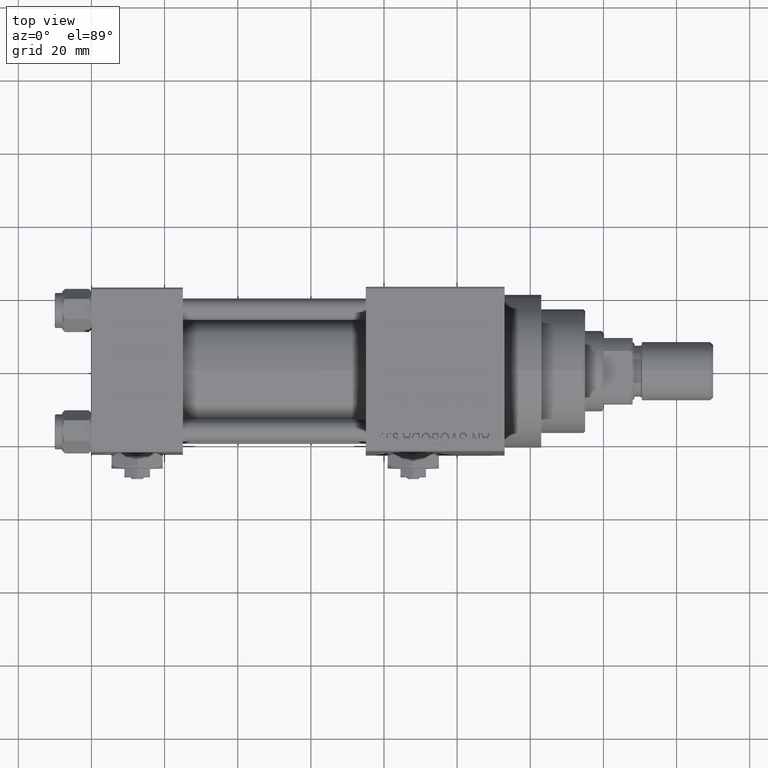
[diagram: clean part render]
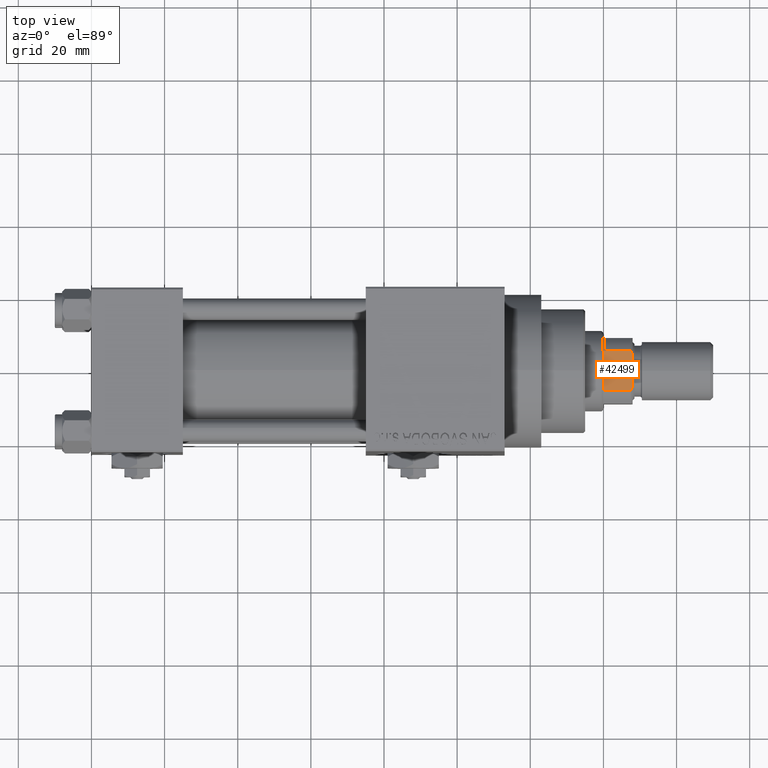
[diagram: same view with one face highlighted and labeled with its STEP entity id]
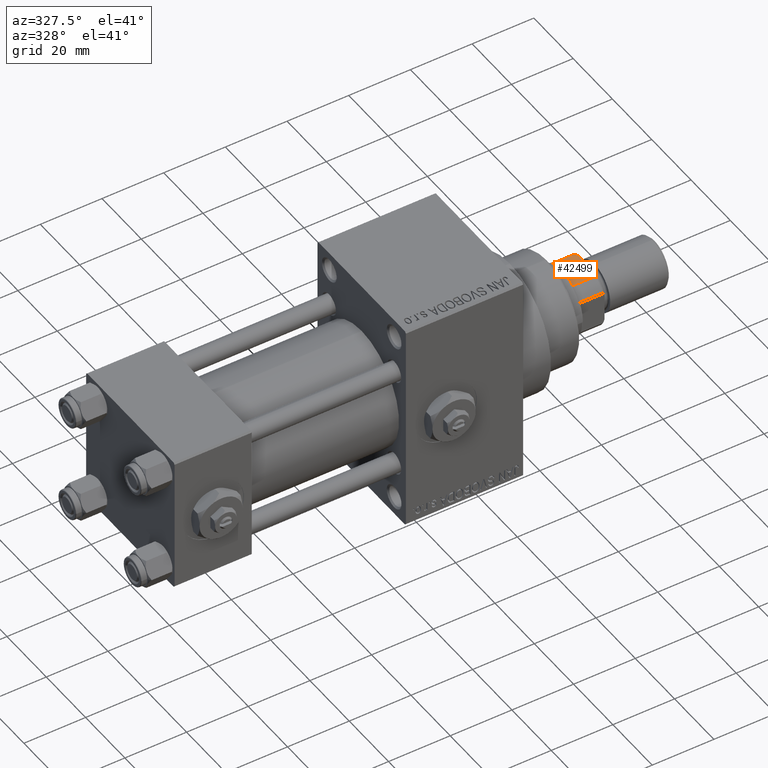
[diagram: same view with one face highlighted and labeled with its STEP entity id]
A machine part, top view. The second image highlights one B-rep face of the part: STEP entity #42499.
A second angle (auxiliary view) of the same face is appended — the face is thin or edge-on in the first view.
In plain terms, the highlighted planar face has unit normal (0, 0, -1).
Its self-contained STEP definition (entity closure, byte-faithful):
#696 = EDGE_LOOP ( 'NONE', ( #23999, #35477, #45069, #17374, #29068, #48343 ) ) ;
#879 = VERTEX_POINT ( 'NONE', #9931 ) ;
#5223 = B_SPLINE_CURVE_WITH_KNOTS ( 'NONE', 3,
 ( #45401, #11336, #18840, #7307 ),
 .UNSPECIFIED., .F., .F.,
 ( 4, 4 ),
 ( 0.000000000000000000, 0.001162453897363199080 ),
 .UNSPECIFIED. ) ;
#5428 = LINE ( 'NONE', #39780, #10222 ) ;
#7307 = CARTESIAN_POINT ( 'NONE',  ( 4.358898943540667759, -9.000000000000001776, 123.0000000000000000 ) ) ;
#7791 = DIRECTION ( 'NONE',  ( 0.000000000000000000, -0.000000000000000000, 1.000000000000000000 ) ) ;
#9758 = AXIS2_PLACEMENT_3D ( 'NONE', #34622, #30864, #7791 ) ;
#9931 = CARTESIAN_POINT ( 'NONE',  ( -4.358898943540667759, -9.000000000000001776, 123.0000000000000000 ) ) ;
#10222 = VECTOR ( 'NONE', #43528, 1000.000000000000000 ) ;
#10592 = CARTESIAN_POINT ( 'NONE',  ( -5.408326913195988794, -8.999999999999998224, 122.5000000000000000 ) ) ;
#11047 = VECTOR ( 'NONE', #42794, 1000.000000000000000 ) ;
#11336 = CARTESIAN_POINT ( 'NONE',  ( 5.063687070142448121, -8.999999999999998224, 122.6775166608139216 ) ) ;
#11393 = DIRECTION ( 'NONE',  ( 1.000000000000000000, 0.000000000000000000, 0.000000000000000000 ) ) ;
#11935 = CARTESIAN_POINT ( 'NONE',  ( -5.408326913195988794, -8.999999999999998224, 115.0000000000000284 ) ) ;
#12633 = CARTESIAN_POINT ( 'NONE',  ( -5.408326913195988794, -8.999999999999998224, 122.5000000000000000 ) ) ;
#14980 = CARTESIAN_POINT ( 'NONE',  ( -9.000000000000001776, -9.000000000000001776, 123.0000000000000000 ) ) ;
#15489 = LINE ( 'NONE', #14980, #11047 ) ;
#17374 = ORIENTED_EDGE ( 'NONE', *, *, #48336, .T. ) ;
#18643 = LINE ( 'NONE', #33193, #34410 ) ;
#18840 = CARTESIAN_POINT ( 'NONE',  ( 4.714305797500245809, -9.000000000000001776, 122.8450817439748448 ) ) ;
#19268 = VERTEX_POINT ( 'NONE', #10592 ) ;
#19656 = VERTEX_POINT ( 'NONE', #38108 ) ;
#19853 = LINE ( 'NONE', #20353, #21391 ) ;
#20353 = CARTESIAN_POINT ( 'NONE',  ( 5.408326913195988794, -8.999999999999998224, -0.001000000000001000089 ) ) ;
#21391 = VECTOR ( 'NONE', #35393, 1000.000000000000000 ) ;
#23999 = ORIENTED_EDGE ( 'NONE', *, *, #27026, .T. ) ;
#24416 = CARTESIAN_POINT ( 'NONE',  ( -4.358898943540667759, -9.000000000000001776, 123.0000000000000000 ) ) ;
#25660 = EDGE_CURVE ( 'NONE', #39710, #19656, #5223, .T. ) ;
#26847 = FACE_OUTER_BOUND ( 'NONE', #696, .T. ) ;
#27026 = EDGE_CURVE ( 'NONE', #40179, #39710, #19853, .T. ) ;
#27412 = CARTESIAN_POINT ( 'NONE',  ( 5.408326913195988794, -8.999999999999998224, 122.5000000000000000 ) ) ;
#29068 = ORIENTED_EDGE ( 'NONE', *, *, #32476, .F. ) ;
#30105 = PLANE ( 'NONE',  #9758 ) ;
#30864 = DIRECTION ( 'NONE',  ( 0.000000000000000000, 1.000000000000000000, 0.000000000000000000 ) ) ;
#32351 = EDGE_CURVE ( 'NONE', #879, #19656, #15489, .T. ) ;
#32476 = EDGE_CURVE ( 'NONE', #40696, #19268, #5428, .T. ) ;
#33193 = CARTESIAN_POINT ( 'NONE',  ( -9.000000000000001776, -9.000000000000001776, 115.0000000000000000 ) ) ;
#34390 = CARTESIAN_POINT ( 'NONE',  ( 5.408326913195988794, -8.999999999999998224, 115.0000000000000284 ) ) ;
#34410 = VECTOR ( 'NONE', #11393, 1000.000000000000000 ) ;
#34622 = CARTESIAN_POINT ( 'NONE',  ( -9.000000000000001776, -9.000000000000001776, 123.0000000000000000 ) ) ;
#35205 = CARTESIAN_POINT ( 'NONE',  ( -4.714305797500247586, -9.000000000000001776, 122.8450817439748448 ) ) ;
#35393 = DIRECTION ( 'NONE',  ( -0.000000000000000000, -0.000000000000000000, 1.000000000000000000 ) ) ;
#35477 = ORIENTED_EDGE ( 'NONE', *, *, #25660, .T. ) ;
#37416 = EDGE_CURVE ( 'NONE', #40696, #40179, #18643, .T. ) ;
#38108 = CARTESIAN_POINT ( 'NONE',  ( 4.358898943540667759, -9.000000000000001776, 123.0000000000000000 ) ) ;
#38976 = CARTESIAN_POINT ( 'NONE',  ( -5.063687070142449009, -9.000000000000001776, 122.6775166608139216 ) ) ;
#39471 = B_SPLINE_CURVE_WITH_KNOTS ( 'NONE', 3,
 ( #24416, #35205, #38976, #12633 ),
 .UNSPECIFIED., .F., .F.,
 ( 4, 4 ),
 ( 0.000000000000000000, 0.001162453897363199080 ),
 .UNSPECIFIED. ) ;
#39710 = VERTEX_POINT ( 'NONE', #27412 ) ;
#39780 = CARTESIAN_POINT ( 'NONE',  ( -5.408326913195988794, -8.999999999999998224, -0.001000000000001000089 ) ) ;
#40179 = VERTEX_POINT ( 'NONE', #34390 ) ;
#40696 = VERTEX_POINT ( 'NONE', #11935 ) ;
#42499 = ADVANCED_FACE ( 'NONE', ( #26847 ), #30105, .F. ) ;
#42794 = DIRECTION ( 'NONE',  ( 1.000000000000000000, 0.000000000000000000, 0.000000000000000000 ) ) ;
#43528 = DIRECTION ( 'NONE',  ( -0.000000000000000000, -0.000000000000000000, 1.000000000000000000 ) ) ;
#45069 = ORIENTED_EDGE ( 'NONE', *, *, #32351, .F. ) ;
#45401 = CARTESIAN_POINT ( 'NONE',  ( 5.408326913195988794, -8.999999999999998224, 122.5000000000000000 ) ) ;
#48336 = EDGE_CURVE ( 'NONE', #879, #19268, #39471, .T. ) ;
#48343 = ORIENTED_EDGE ( 'NONE', *, *, #37416, .T. ) ;